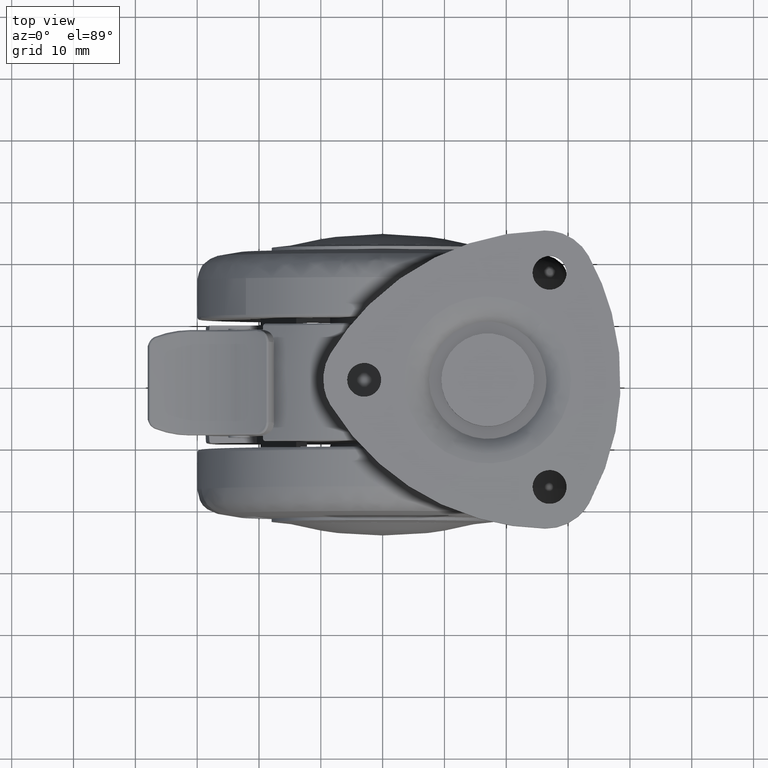
[diagram: clean part render]
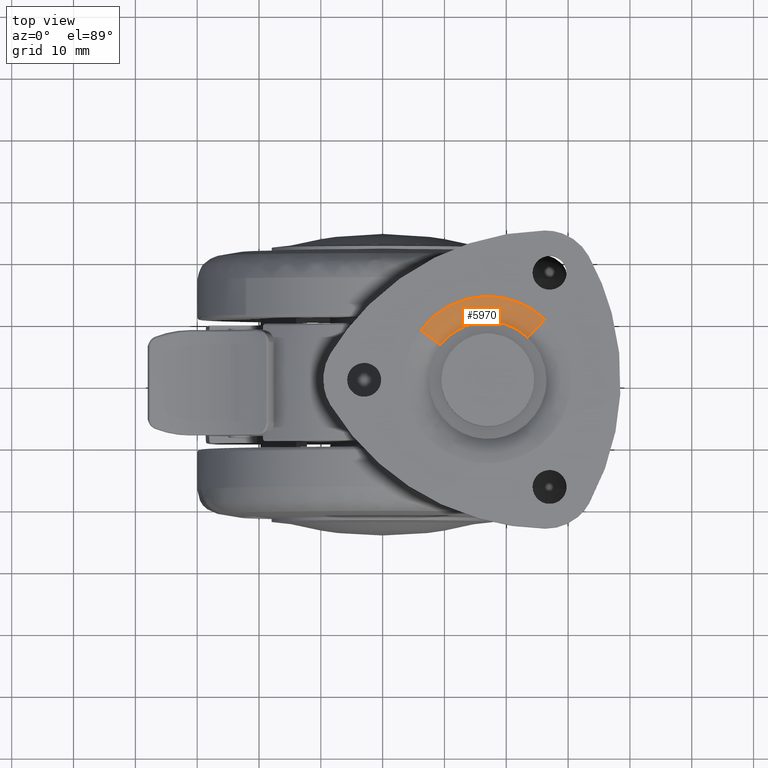
[diagram: same view with one face highlighted and labeled with its STEP entity id]
A machine part, top view. The second image highlights one B-rep face of the part: STEP entity #5970.
In plain terms, the highlighted face is a freeform B-spline surface patch.
Its self-contained STEP definition (entity closure, byte-faithful):
#5788=CARTESIAN_POINT('',(23.521353781315131,6.908107184429831,44.000000000887312));
#5789=VERTEX_POINT('',#5788);
#5820=CARTESIAN_POINT('',(9.385113643637592,5.680097339118317,44.000000000152511));
#5821=VERTEX_POINT('',#5820);
#5835=CARTESIAN_POINT('',(6.178842343501279,8.071718075673964,45.999999999997982));
#5836=VERTEX_POINT('',#5835);
#5837=CARTESIAN_POINT('',(9.385113643637590,5.680097339118317,44.000000000152511));
#5838=CARTESIAN_POINT('',(8.182761804008552,6.576954978662024,46.000001587329990));
#5839=CARTESIAN_POINT('',(6.178842343501279,8.071718075673964,45.999999999997982));
#5847=(BOUNDED_CURVE()B_SPLINE_CURVE(2,(#5837,#5838,#5839),.UNSPECIFIED.,.F.,.U.)B_SPLINE_CURVE_WITH_KNOTS((3,3),(-1.611844127489166,-0.401618252875046),.UNSPECIFIED.)CURVE()GEOMETRIC_REPRESENTATION_ITEM()RATIONAL_B_SPLINE_CURVE((0.917356283574179,0.819545245893637,0.915204151464197))REPRESENTATION_ITEM(''));
#5848=EDGE_CURVE('',#5821,#5836,#5847,.T.);
#5882=CARTESIAN_POINT('',(26.267186951724351,9.816783892984592,46.0));
#5883=VERTEX_POINT('',#5882);
#5897=CARTESIAN_POINT('',(23.521353781315128,6.908107184429831,44.000000000887319));
#5898=CARTESIAN_POINT('',(24.551041220875870,7.998860950847647,45.999999999991545));
#5899=CARTESIAN_POINT('',(26.267186951724341,9.816783892984592,46.0));
#5907=(BOUNDED_CURVE()B_SPLINE_CURVE(2,(#5897,#5898,#5899),.UNSPECIFIED.,.F.,.U.)B_SPLINE_CURVE_WITH_KNOTS((3,3),(-1.611844126991468,-0.401619111021793),.UNSPECIFIED.)CURVE()GEOMETRIC_REPRESENTATION_ITEM()RATIONAL_B_SPLINE_CURVE((0.877805493110127,0.784211535428049,0.875746018035858))REPRESENTATION_ITEM(''));
#5908=EDGE_CURVE('',#5789,#5883,#5907,.T.);
#5913=CARTESIAN_POINT('',(9.488643573189160,5.602872276276176,43.819581965005170));
#5914=CARTESIAN_POINT('',(15.091515849465337,13.114228703087015,43.819581965005170));
#5915=CARTESIAN_POINT('',(22.602872276276170,7.511356426810842,43.819581965005170));
#5916=CARTESIAN_POINT('',(23.037973400047647,7.186805721820424,43.819581965005163));
#5917=CARTESIAN_POINT('',(23.432690455324511,6.814187157749162,43.819581965005170));
#5918=CARTESIAN_POINT('',(8.230128168703415,6.541624302992809,46.118881977195628));
#5919=CARTESIAN_POINT('',(14.771752471696225,15.311496134289394,46.118881977195642));
#5920=CARTESIAN_POINT('',(23.541624302992805,8.769871831296589,46.118881977195628));
#5921=CARTESIAN_POINT('',(24.049625903810064,8.390943189944473,46.118881977195642));
#5922=CARTESIAN_POINT('',(24.510477151934719,7.955892998849470,46.118881977195628));
#5923=CARTESIAN_POINT('',(6.000595403981163,8.204677765869873,45.995052385844815));
#5924=CARTESIAN_POINT('',(14.205273169851038,19.204082361888698,45.995052385844815));
#5925=CARTESIAN_POINT('',(25.204677765869867,10.999404596018842,45.995052385844815));
#5926=CARTESIAN_POINT('',(25.841826774464685,10.524142298070817,45.995052385844822));
#5927=CARTESIAN_POINT('',(26.419838566907721,9.978490871974460,45.995052385844808));
#5935=(BOUNDED_SURFACE()B_SPLINE_SURFACE(2,2,((#5913,#5918,#5923),(#5914,#5919,#5924),(#5915,#5920,#5925),(#5916,#5921,#5926),(#5917,#5922,#5927)),.UNSPECIFIED.,.F.,.F.,.U.)B_SPLINE_SURFACE_WITH_KNOTS((3,2,3),(3,3),(0.0,22.735979139329910,24.554855735858759),(0.0,5.193025316085939),.UNSPECIFIED.)GEOMETRIC_REPRESENTATION_ITEM()RATIONAL_B_SPLINE_SURFACE(((0.927610324228333,0.809398710884906,0.925243181089684),(0.655919550560506,0.572331317150367,0.654245727595128),(0.927610324228333,0.809398710884906,0.925243181089684),(0.905875083063268,0.790433337472950,0.903563405485584),(0.887617477168078,0.774502420913020,0.885352390670069)))REPRESENTATION_ITEM('')SURFACE());
#5936=CARTESIAN_POINT('',(23.521353781315131,6.908107184429830,44.000000000887312));
#5937=CARTESIAN_POINT('',(20.775746966043300,9.500000000000000,43.999999999999993));
#5938=CARTESIAN_POINT('',(17.0,9.500000000000000,44.0));
#5939=CARTESIAN_POINT('',(12.234456092818533,9.500000000000000,44.000000000000007));
#5940=CARTESIAN_POINT('',(9.385113643637592,5.680097339118319,44.000000000152511));
#5948=(BOUNDED_CURVE()B_SPLINE_CURVE(2,(#5936,#5937,#5938,#5939,#5940),.UNSPECIFIED.,.F.,.U.)B_SPLINE_CURVE_WITH_KNOTS((3,2,3),(0.629344514439286,0.750000000000000,0.896843395504741),.UNSPECIFIED.)CURVE()GEOMETRIC_REPRESENTATION_ITEM()RATIONAL_B_SPLINE_CURVE((0.853730296276468,0.858643305866490,1.0,0.827962260916478,0.858025367928821))REPRESENTATION_ITEM(''));
#5949=EDGE_CURVE('',#5789,#5821,#5948,.T.);
#5950=ORIENTED_EDGE('',*,*,#5949,.F.);
#5951=ORIENTED_EDGE('',*,*,#5908,.T.);
#5952=CARTESIAN_POINT('',(6.178842343501279,8.071718075673964,45.999999999997989));
#5953=CARTESIAN_POINT('',(10.227908459341528,13.500001474261044,45.999999999998437));
#5954=CARTESIAN_POINT('',(16.999998875036219,13.500000839127120,45.999999999999112));
#5955=CARTESIAN_POINT('',(22.365534711905788,13.500000335909714,45.999999999999645));
#5956=CARTESIAN_POINT('',(26.267186951724355,9.816783892984592,46.0));
#5964=(BOUNDED_CURVE()B_SPLINE_CURVE(2,(#5952,#5953,#5954,#5955,#5956),.UNSPECIFIED.,.F.,.U.)B_SPLINE_CURVE_WITH_KNOTS((3,2,3),(0.103156589162906,0.250000000000000,0.370655485560226),.UNSPECIFIED.)CURVE()GEOMETRIC_REPRESENTATION_ITEM()RATIONAL_B_SPLINE_CURVE((0.858025374206778,0.827962242953510,1.0,0.858643305867061,0.853730296276507))REPRESENTATION_ITEM(''));
#5965=EDGE_CURVE('',#5836,#5883,#5964,.T.);
#5966=ORIENTED_EDGE('',*,*,#5965,.F.);
#5967=ORIENTED_EDGE('',*,*,#5848,.F.);
#5968=EDGE_LOOP('',(#5950,#5951,#5966,#5967));
#5969=FACE_OUTER_BOUND('',#5968,.T.);
#5970=ADVANCED_FACE('',(#5969),#5935,.T.);